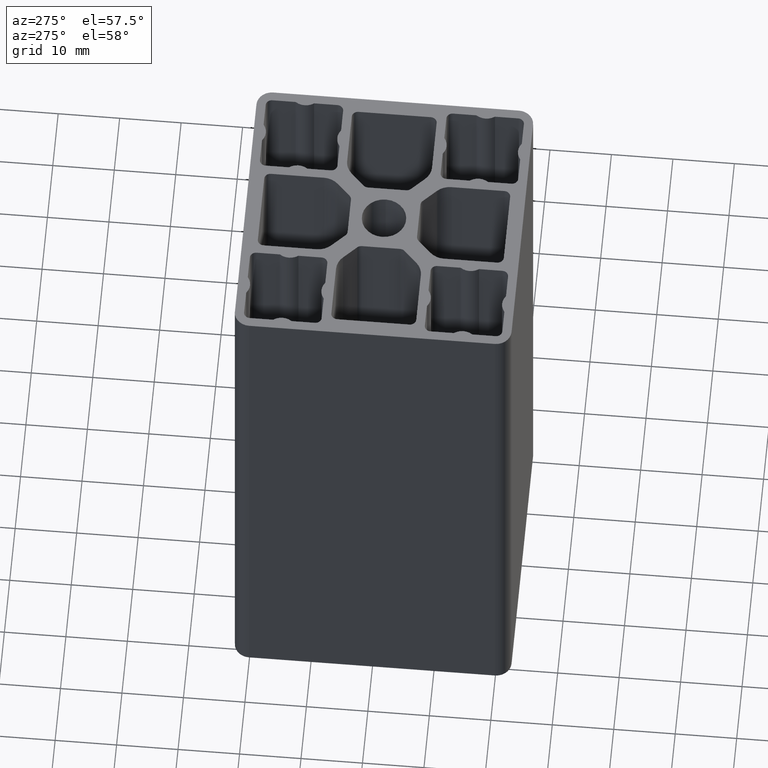
[diagram: clean part render]
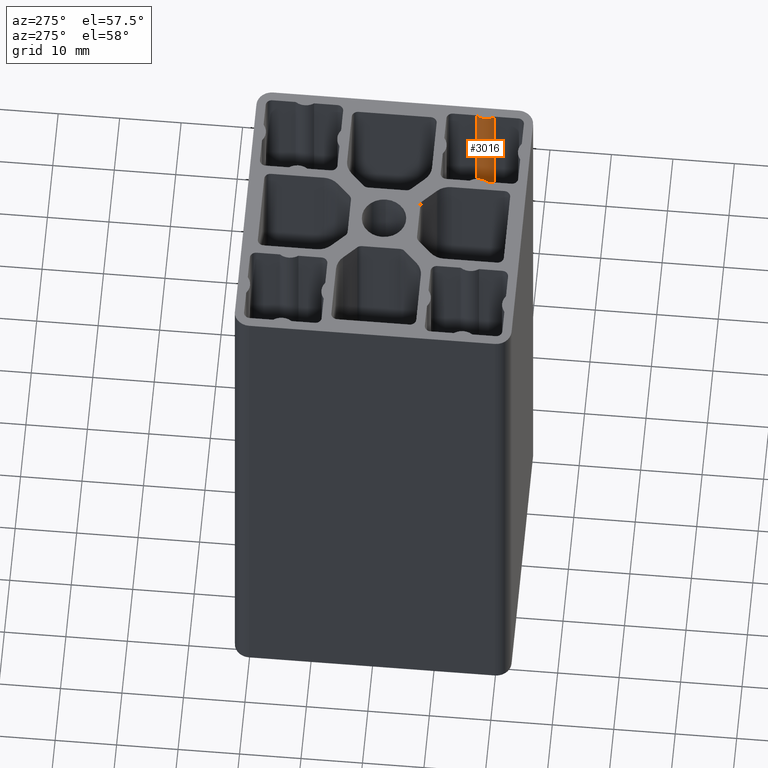
[diagram: same view with one face highlighted and labeled with its STEP entity id]
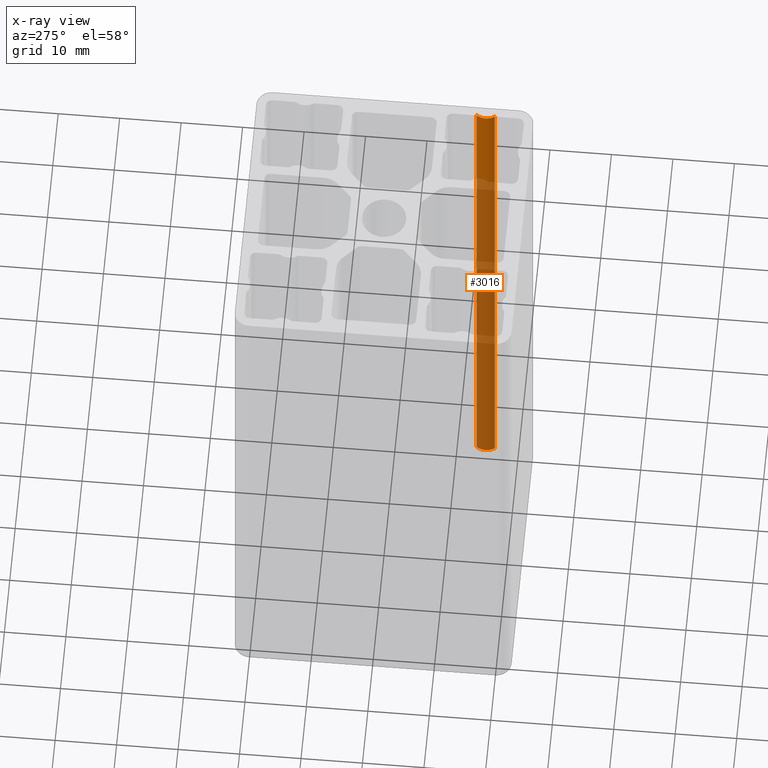
[diagram: x-ray of the same camera — body ghosted, the highlighted face saturated]
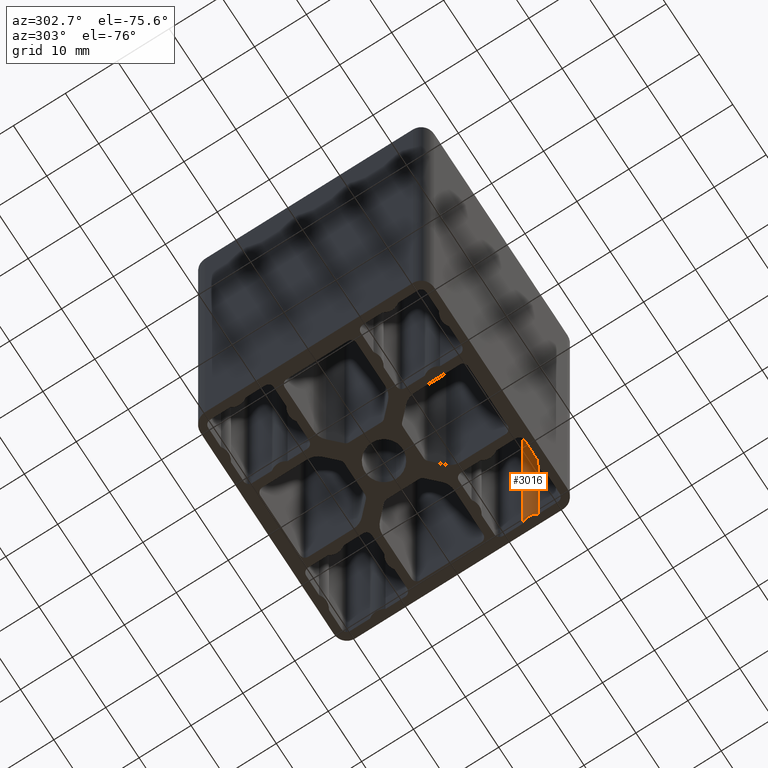
[diagram: same view with one face highlighted and labeled with its STEP entity id]
A machine part, auxiliary view. The second image highlights one B-rep face of the part: STEP entity #3016.
The next image is the same camera in x-ray: the body ghosted, the highlighted face saturated — about 81% of this face is hidden behind the body in this view.
A second angle (auxiliary view) of the same face is appended — the face is thin or edge-on in the first view.
In plain terms, the highlighted cylindrical surface (edge-blend (fillet) strip) has radius 2.5 mm, axis along (0, 0, 1).
Its self-contained STEP definition (entity closure, byte-faithful):
#140=CIRCLE('',#3280,2.49999999999001);
#141=CIRCLE('',#3281,2.49999999999001);
#273=CYLINDRICAL_SURFACE('',#3279,2.49999999999001);
#401=FACE_OUTER_BOUND('',#557,.T.);
#557=EDGE_LOOP('',(#2300,#2301,#2302,#2303));
#799=LINE('',#4911,#1071);
#800=LINE('',#4917,#1072);
#1071=VECTOR('',#3971,100.);
#1072=VECTOR('',#3978,100.);
#1362=VERTEX_POINT('',#4908);
#1363=VERTEX_POINT('',#4910);
#1364=VERTEX_POINT('',#4914);
#1365=VERTEX_POINT('',#4916);
#1754=EDGE_CURVE('',#1363,#1362,#799,.T.);
#1756=EDGE_CURVE('',#1364,#1362,#140,.T.);
#1757=EDGE_CURVE('',#1365,#1364,#800,.T.);
#1758=EDGE_CURVE('',#1363,#1365,#141,.T.);
#2300=ORIENTED_EDGE('',*,*,#1756,.F.);
#2301=ORIENTED_EDGE('',*,*,#1757,.F.);
#2302=ORIENTED_EDGE('',*,*,#1758,.F.);
#2303=ORIENTED_EDGE('',*,*,#1754,.T.);
#3016=ADVANCED_FACE('',(#401),#273,.T.);
#3279=AXIS2_PLACEMENT_3D('',#4913,#3974,#3975);
#3280=AXIS2_PLACEMENT_3D('',#4915,#3976,#3977);
#3281=AXIS2_PLACEMENT_3D('',#4918,#3979,#3980);
#3971=DIRECTION('',(0.,0.,1.));
#3974=DIRECTION('center_axis',(0.,0.,1.));
#3975=DIRECTION('ref_axis',(0.807692307695569,-0.589604219870759,0.));
#3976=DIRECTION('center_axis',(0.,0.,1.));
#3977=DIRECTION('ref_axis',(0.807692307695569,-0.589604219870759,0.));
#3978=DIRECTION('',(0.,0.,1.));
#3979=DIRECTION('center_axis',(0.,0.,-1.));
#3980=DIRECTION('ref_axis',(0.807692307695569,-0.589604219870759,0.));
#4908=CARTESIAN_POINT('',(20.9807692307695,-16.1740105496716,100.));
#4910=CARTESIAN_POINT('',(20.9807692307695,-16.1740105496716,0.));
#4911=CARTESIAN_POINT('',(20.9807692307695,-16.1740105496716,0.));
#4913=CARTESIAN_POINT('Origin',(23.,-14.7,0.));
#4914=CARTESIAN_POINT('',(20.9807692307691,-13.225989450329,100.));
#4915=CARTESIAN_POINT('Origin',(23.,-14.7,100.));
#4916=CARTESIAN_POINT('',(20.9807692307691,-13.225989450329,0.));
#4917=CARTESIAN_POINT('',(20.9807692307691,-13.225989450329,0.));
#4918=CARTESIAN_POINT('Origin',(23.,-14.7,0.));